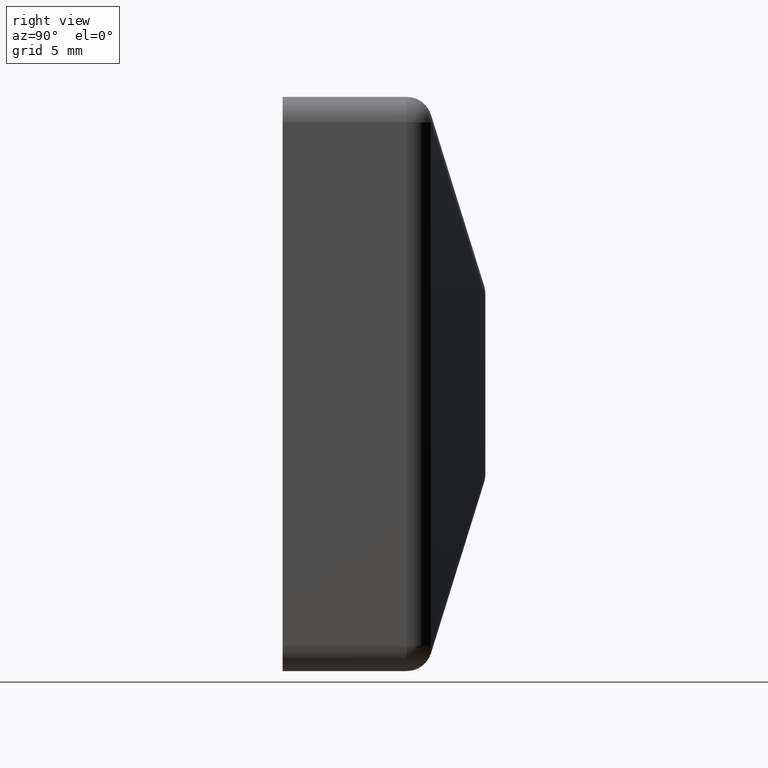
[diagram: clean part render]
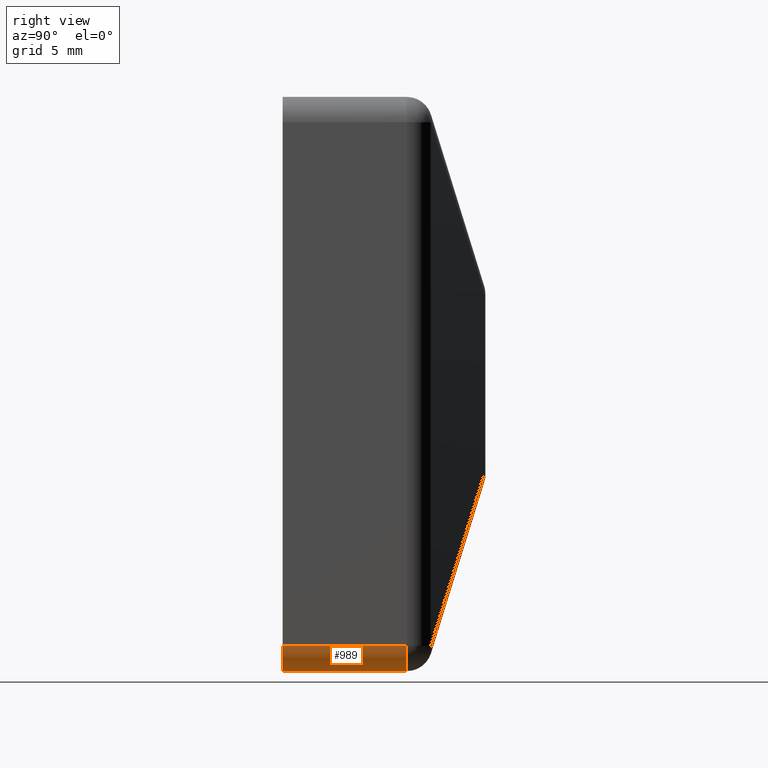
[diagram: same view with one face highlighted and labeled with its STEP entity id]
A machine part, right view. The second image highlights one B-rep face of the part: STEP entity #989.
In plain terms, the highlighted cylindrical surface (edge-blend (fillet) strip) has radius 1.5 mm, axis along (0, -1, 0).
Its self-contained STEP definition (entity closure, byte-faithful):
#107 = DIRECTION ( 'NONE',  ( 0.000000000000000000, -7.517135062566166705E-15, 1.000000000000000000 ) ) ;
#523 = CARTESIAN_POINT ( 'NONE',  ( 10.50000000000000888, 30.00000000000000000, -15.49999999999997335 ) ) ;
#983 = ORIENTED_EDGE ( 'NONE', *, *, #4930, .F. ) ;
#989 = ADVANCED_FACE ( 'NONE', ( #6542 ), #10347, .T. ) ;
#1400 = DIRECTION ( 'NONE',  ( 0.000000000000000000, -1.000000000000000000, 0.000000000000000000 ) ) ;
#2187 = CARTESIAN_POINT ( 'NONE',  ( 12.00000000000001066, 30.00000000000000000, -15.49999999999997335 ) ) ;
#2231 = CARTESIAN_POINT ( 'NONE',  ( 12.00000000000001066, 0.000000000000000000, -15.49999999999997335 ) ) ;
#2433 = ORIENTED_EDGE ( 'NONE', *, *, #12209, .F. ) ;
#2940 = AXIS2_PLACEMENT_3D ( 'NONE', #12159, #4602, #107 ) ;
#3140 = DIRECTION ( 'NONE',  ( -0.000000000000000000, 1.000000000000000000, -0.000000000000000000 ) ) ;
#3966 = CARTESIAN_POINT ( 'NONE',  ( 12.00000000000001954, 7.350000000000001421, -15.49999999999997335 ) ) ;
#4214 = VECTOR ( 'NONE', #6806, 1000.000000000000000 ) ;
#4602 = DIRECTION ( 'NONE',  ( -0.000000000000000000, 1.000000000000000000, 7.517135062566166705E-15 ) ) ;
#4930 = EDGE_CURVE ( 'NONE', #13485, #9112, #13510, .T. ) ;
#5561 = DIRECTION ( 'NONE',  ( 0.000000000000000000, 0.000000000000000000, 1.000000000000000000 ) ) ;
#6220 = ORIENTED_EDGE ( 'NONE', *, *, #12189, .F. ) ;
#6542 = FACE_OUTER_BOUND ( 'NONE', #8629, .T. ) ;
#6749 = CARTESIAN_POINT ( 'NONE',  ( 10.50000000000000888, 30.00000000000000000, -16.99999999999997513 ) ) ;
#6806 = DIRECTION ( 'NONE',  ( 0.000000000000000000, -1.000000000000000000, 0.000000000000000000 ) ) ;
#7143 = AXIS2_PLACEMENT_3D ( 'NONE', #523, #1400, #11226 ) ;
#7572 = EDGE_CURVE ( 'NONE', #13107, #8644, #11249, .T. ) ;
#8200 = AXIS2_PLACEMENT_3D ( 'NONE', #10065, #12113, #5561 ) ;
#8470 = CIRCLE ( 'NONE', #8200, 1.499999999999999556 ) ;
#8629 = EDGE_LOOP ( 'NONE', ( #6220, #13410, #2433, #983 ) ) ;
#8644 = VERTEX_POINT ( 'NONE', #11384 ) ;
#9112 = VERTEX_POINT ( 'NONE', #3966 ) ;
#10065 = CARTESIAN_POINT ( 'NONE',  ( 10.50000000000000888, 0.000000000000000000, -15.49999999999997335 ) ) ;
#10294 = VECTOR ( 'NONE', #3140, 1000.000000000000000 ) ;
#10347 = CYLINDRICAL_SURFACE ( 'NONE', #7143, 1.499999999999999556 ) ;
#11038 = CIRCLE ( 'NONE', #2940, 1.499999999999999556 ) ;
#11226 = DIRECTION ( 'NONE',  ( 0.000000000000000000, 0.000000000000000000, -1.000000000000000000 ) ) ;
#11249 = LINE ( 'NONE', #6749, #4214 ) ;
#11384 = CARTESIAN_POINT ( 'NONE',  ( 10.50000000000000888, 0.000000000000000000, -16.99999999999997513 ) ) ;
#12113 = DIRECTION ( 'NONE',  ( -0.000000000000000000, -1.000000000000000000, -0.000000000000000000 ) ) ;
#12159 = CARTESIAN_POINT ( 'NONE',  ( 10.50000000000001066, 7.350000000000001421, -15.49999999999997335 ) ) ;
#12189 = EDGE_CURVE ( 'NONE', #8644, #13485, #8470, .T. ) ;
#12209 = EDGE_CURVE ( 'NONE', #9112, #13107, #11038, .T. ) ;
#12378 = CARTESIAN_POINT ( 'NONE',  ( 10.50000000000000888, 7.350000000000012967, -16.99999999999997513 ) ) ;
#13107 = VERTEX_POINT ( 'NONE', #12378 ) ;
#13410 = ORIENTED_EDGE ( 'NONE', *, *, #7572, .F. ) ;
#13485 = VERTEX_POINT ( 'NONE', #2231 ) ;
#13510 = LINE ( 'NONE', #2187, #10294 ) ;